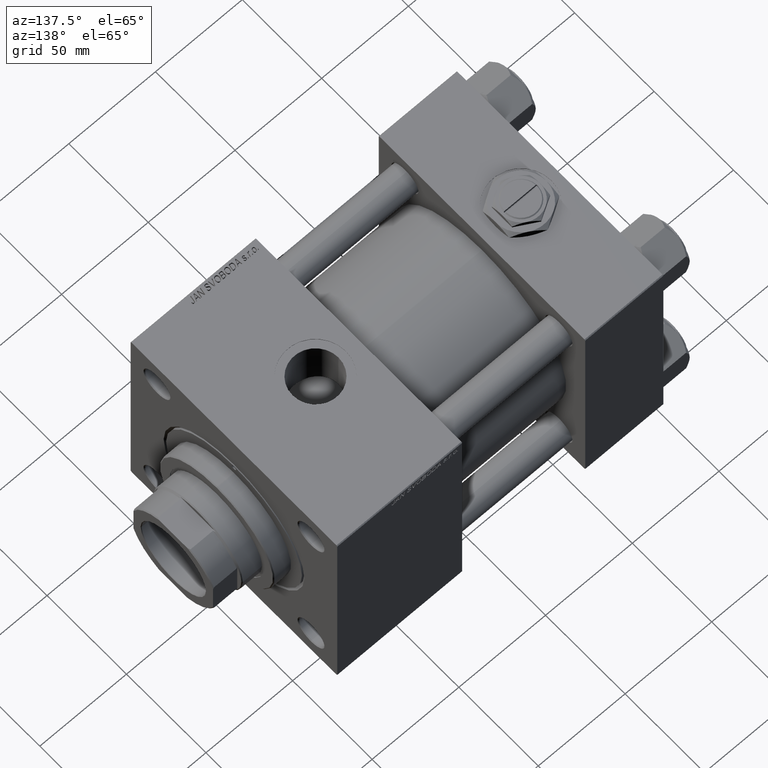
[diagram: clean part render]
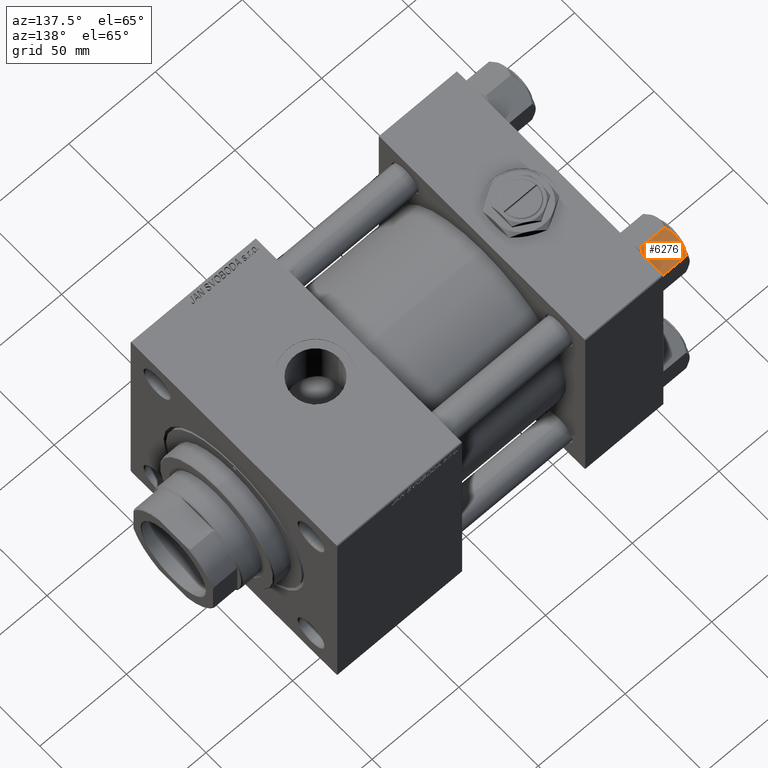
[diagram: same view with one face highlighted and labeled with its STEP entity id]
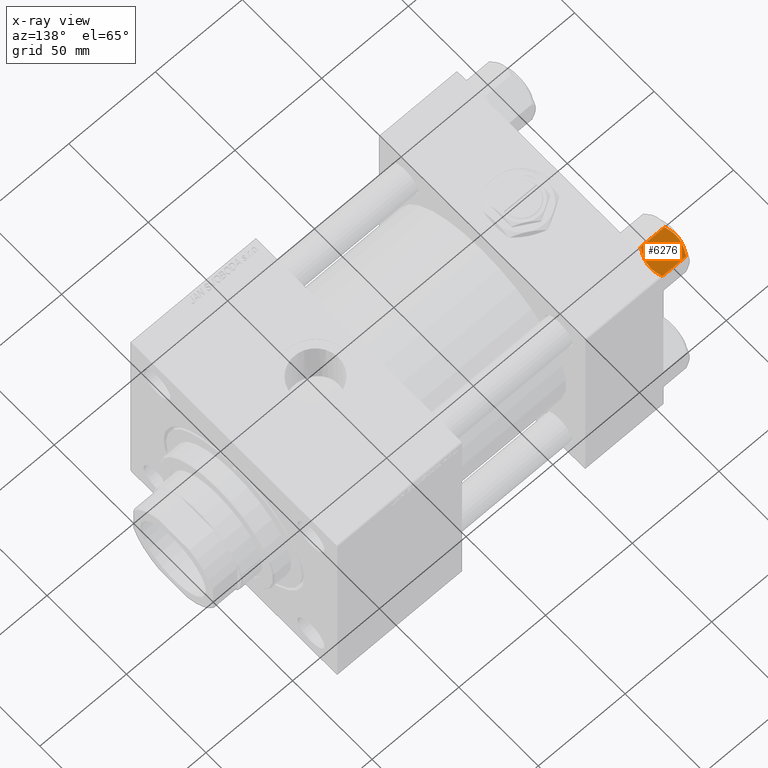
[diagram: x-ray of the same camera — body ghosted, the highlighted face saturated]
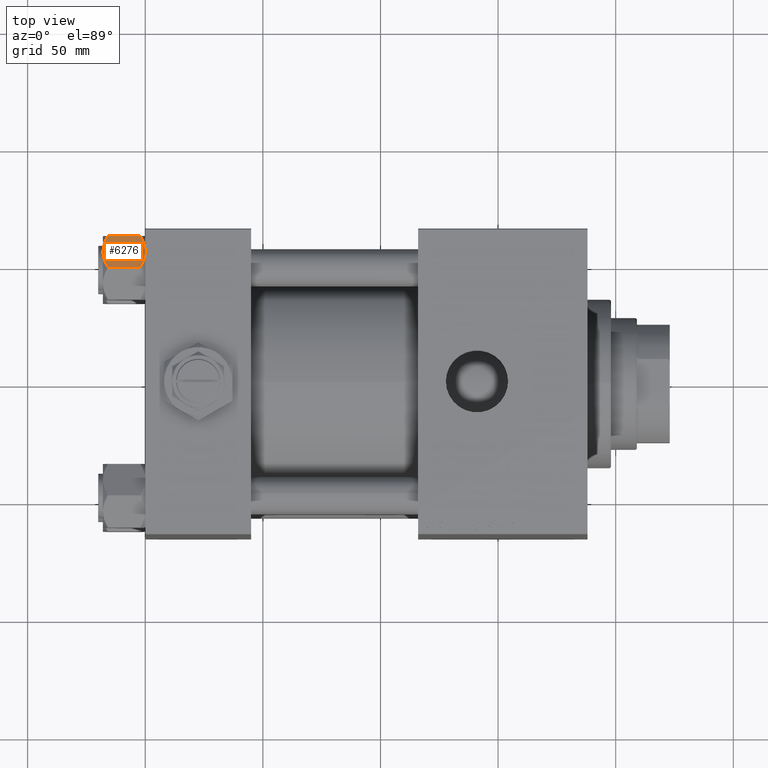
[diagram: same view with one face highlighted and labeled with its STEP entity id]
A machine part, auxiliary view. The second image highlights one B-rep face of the part: STEP entity #6276.
The next image is the same camera in x-ray: the body ghosted, the highlighted face saturated — about 0% of this face is hidden behind the body in this view.
A second angle (top view) of the same face is appended — the face is thin or edge-on in the first view.
In plain terms, the highlighted planar face has unit normal (0, -0.5, -0.866).
Its self-contained STEP definition (entity closure, byte-faithful):
#239 = LINE ( 'NONE', #8293, #31979 ) ;
#895 = LINE ( 'NONE', #4925, #14114 ) ;
#951 = CARTESIAN_POINT ( 'NONE',  ( 11.71499999999999453, 6.763658403556462417, -18.00000000000000000 ) ) ;
#1688 = DIRECTION ( 'NONE',  ( 0.4999999999999999445, -0.8660254037844387076, 0.000000000000000000 ) ) ;
#1746 = CARTESIAN_POINT ( 'NONE',  ( 11.38181071908714692, 7.340759166634869715, -17.99999999999998224 ) ) ;
#2604 = CARTESIAN_POINT ( 'NONE',  ( 7.903528262322689457, 13.36532110482641045, -16.00000000000000000 ) ) ;
#2901 = CARTESIAN_POINT ( 'NONE',  ( 11.05297796109638320, 7.910314210667883650, 2.165016213181991667E-15 ) ) ;
#3847 = ORIENTED_EDGE ( 'NONE', *, *, #32406, .F. ) ;
#4003 = DIRECTION ( 'NONE',  ( -0.000000000000000000, -0.000000000000000000, 1.000000000000000000 ) ) ;
#4280 = FACE_OUTER_BOUND ( 'NONE', #16625, .T. ) ;
#4555 = AXIS2_PLACEMENT_3D ( 'NONE', #16072, #7250, #11536 ) ;
#4925 = CARTESIAN_POINT ( 'NONE',  ( 7.810000000000001386, 13.52731680711293905, -18.00000000000000000 ) ) ;
#4962 = B_SPLINE_CURVE_WITH_KNOTS ( 'NONE', 3,
 ( #24056, #2901, #11751, #11216, #48444, #39598, #32099, #18965 ),
 .UNSPECIFIED., .F., .F.,
 ( 4, 2, 2, 4 ),
 ( 0.007890825462474437835, 0.01181022244528555538, 0.01376992093669111156, 0.01572961942809666946 ),
 .UNSPECIFIED. ) ;
#6276 = ADVANCED_FACE ( 'NONE', ( #4280 ), #28126, .F. ) ;
#7250 = DIRECTION ( 'NONE',  ( -0.8660254037844387076, -0.4999999999999999445, 0.000000000000000000 ) ) ;
#7717 = CARTESIAN_POINT ( 'NONE',  ( 13.36540581434588049, 3.905071680002324630, -0.3836066851120584764 ) ) ;
#7792 = CARTESIAN_POINT ( 'NONE',  ( 12.37702203890362362, 5.617002596445057172, -17.99999999999999645 ) ) ;
#8250 = CARTESIAN_POINT ( 'NONE',  ( 14.92760668674625002, 1.199260397376449072, -1.411989271640066601 ) ) ;
#8293 = CARTESIAN_POINT ( 'NONE',  ( 15.62000000000000455, -1.379485931020374819E-15, -18.00000000000000000 ) ) ;
#8505 = CARTESIAN_POINT ( 'NONE',  ( 11.71500000000000519, 6.763658403556469523, 0.000000000000000000 ) ) ;
#9649 = VERTEX_POINT ( 'NONE', #52317 ) ;
#9790 = CARTESIAN_POINT ( 'NONE',  ( 9.114548888011798411, 11.26777185211902221, -17.08577173959729478 ) ) ;
#11216 = CARTESIAN_POINT ( 'NONE',  ( 9.439480280627263298, 10.70497417113492489, -0.7317196846281137645 ) ) ;
#11536 = DIRECTION ( 'NONE',  ( 0.4999999999999998890, -0.8660254037844385966, 0.000000000000000000 ) ) ;
#11751 = CARTESIAN_POINT ( 'NONE',  ( 10.40215497533437450, 9.037572688741345672, -0.1971866459924547788 ) ) ;
#11814 = CARTESIAN_POINT ( 'NONE',  ( 11.71499999999999453, 6.763658403556462417, -18.00000000000000000 ) ) ;
#11823 = ORIENTED_EDGE ( 'NONE', *, *, #49854, .F. ) ;
#12907 = DIRECTION ( 'NONE',  ( -0.4999999999999999445, 0.8660254037844387076, 0.000000000000000000 ) ) ;
#14114 = VECTOR ( 'NONE', #32797, 1000.000000000000000 ) ;
#15109 = EDGE_CURVE ( 'NONE', #47248, #31805, #46732, .T. ) ;
#16072 = CARTESIAN_POINT ( 'NONE',  ( 7.810000000000001386, 13.52731680711293905, -18.00000000000000000 ) ) ;
#16625 = EDGE_LOOP ( 'NONE', ( #3847, #34131, #19509, #43443, #26442, #24143, #11823, #31755, #43169, #44505 ) ) ;
#17308 = CARTESIAN_POINT ( 'NONE',  ( 12.04818928091285812, 6.186557640478062225, 2.165016213181991667E-15 ) ) ;
#17574 = EDGE_CURVE ( 'NONE', #41531, #44648, #20668, .T. ) ;
#18965 = CARTESIAN_POINT ( 'NONE',  ( 7.903528262322677023, 13.36532110482643176, -2.000000000000000000 ) ) ;
#19351 = VERTEX_POINT ( 'NONE', #36070 ) ;
#19478 = CARTESIAN_POINT ( 'NONE',  ( 7.903528262322677023, 13.36532110482643176, -2.000000000000000000 ) ) ;
#19509 = ORIENTED_EDGE ( 'NONE', *, *, #37357, .F. ) ;
#19828 = CARTESIAN_POINT ( 'NONE',  ( 14.30591678195075467, 2.276058899034909544, -17.05261278537717828 ) ) ;
#20015 = CARTESIAN_POINT ( 'NONE',  ( 12.38621571200405924, 5.601078687526928945, -0.05089381635301384876 ) ) ;
#20668 = LINE ( 'NONE', #37025, #39886 ) ;
#21811 = EDGE_CURVE ( 'NONE', #24239, #19351, #895, .T. ) ;
#22323 = LINE ( 'NONE', #46185, #37626 ) ;
#22602 = CARTESIAN_POINT ( 'NONE',  ( 7.810000000000001386, 13.52731680711293905, -16.00000000000000000 ) ) ;
#22704 = B_SPLINE_CURVE_WITH_KNOTS ( 'NONE', 3,
 ( #23784, #8250, #52440, #7717, #24048, #20015, #17308, #8505 ),
 .UNSPECIFIED., .F., .F.,
 ( 4, 2, 2, 4 ),
 ( 4.472842641970240738E-07, 0.003945636373369317863, 0.005918230917921878283, 0.007890825462474437835 ),
 .UNSPECIFIED. ) ;
#23784 = CARTESIAN_POINT ( 'NONE',  ( 15.52647173767732980, 0.1619957022865022300, -2.000000000000000000 ) ) ;
#23859 = CARTESIAN_POINT ( 'NONE',  ( 13.99051971937273464, 2.822342635978018599, -17.26828031537187513 ) ) ;
#24048 = CARTESIAN_POINT ( 'NONE',  ( 13.04337073483128506, 4.462852799541082938, -0.2430846701012968347 ) ) ;
#24056 = CARTESIAN_POINT ( 'NONE',  ( 11.71500000000000519, 6.763658403556469523, 0.000000000000000000 ) ) ;
#24143 = ORIENTED_EDGE ( 'NONE', *, *, #17574, .F. ) ;
#24218 = B_SPLINE_CURVE_WITH_KNOTS ( 'NONE', 3,
 ( #11814, #7792, #27350, #23859, #19828, #52256, #40730, #44753 ),
 .UNSPECIFIED., .F., .F.,
 ( 4, 2, 2, 4 ),
 ( 0.007890825462474394467, 0.01181022244528549814, 0.01376992093669104911, 0.01572961942809660008 ),
 .UNSPECIFIED. ) ;
#24239 = VERTEX_POINT ( 'NONE', #33454 ) ;
#25389 = VERTEX_POINT ( 'NONE', #19478 ) ;
#25861 = CARTESIAN_POINT ( 'NONE',  ( 7.903528262322689457, 13.36532110482641045, -16.00000000000000000 ) ) ;
#26134 = CARTESIAN_POINT ( 'NONE',  ( 10.06459418565413166, 9.622245127110598872, -17.61639331488792948 ) ) ;
#26175 = CARTESIAN_POINT ( 'NONE',  ( 15.52647173767731736, 0.1619957022865213259, -16.00000000000000000 ) ) ;
#26442 = ORIENTED_EDGE ( 'NONE', *, *, #40989, .F. ) ;
#26838 = VERTEX_POINT ( 'NONE', #33371 ) ;
#27350 = CARTESIAN_POINT ( 'NONE',  ( 13.02784502466562877, 4.489744118371592485, -17.80281335400753662 ) ) ;
#28126 = PLANE ( 'NONE',  #4555 ) ;
#30373 = DIRECTION ( 'NONE',  ( -0.4999999999999999445, 0.8660254037844387076, 0.000000000000000000 ) ) ;
#31755 = ORIENTED_EDGE ( 'NONE', *, *, #15109, .F. ) ;
#31805 = VERTEX_POINT ( 'NONE', #42210 ) ;
#31979 = VECTOR ( 'NONE', #4003, 1000.000000000000000 ) ;
#32099 = CARTESIAN_POINT ( 'NONE',  ( 8.202637790192646605, 12.84724820552771085, -1.706311779141445717 ) ) ;
#32406 = EDGE_CURVE ( 'NONE', #24239, #38111, #34640, .T. ) ;
#32797 = DIRECTION ( 'NONE',  ( -0.000000000000000000, -0.000000000000000000, 1.000000000000000000 ) ) ;
#32800 = B_SPLINE_CURVE_WITH_KNOTS ( 'NONE', 3,
 ( #25861, #45969, #9790, #26134, #37404, #37662, #1746, #951 ),
 .UNSPECIFIED., .F., .F.,
 ( 4, 2, 2, 4 ),
 ( 4.472842641813524291E-07, 0.003945636373369291842, 0.005918230917921843588, 0.007890825462474394467 ),
 .UNSPECIFIED. ) ;
#33371 = CARTESIAN_POINT ( 'NONE',  ( 11.71500000000000519, 6.763658403556469523, 0.000000000000000000 ) ) ;
#33454 = CARTESIAN_POINT ( 'NONE',  ( 7.810000000000000497, 13.52731680711293905, -16.00000000000000000 ) ) ;
#33878 = CARTESIAN_POINT ( 'NONE',  ( 15.52647173767732980, 0.1619957022865022300, -2.000000000000000000 ) ) ;
#34131 = ORIENTED_EDGE ( 'NONE', *, *, #21811, .T. ) ;
#34640 = LINE ( 'NONE', #35173, #52879 ) ;
#35173 = CARTESIAN_POINT ( 'NONE',  ( 7.810000000000001386, 13.52731680711293905, -16.00000000000000000 ) ) ;
#36070 = CARTESIAN_POINT ( 'NONE',  ( 7.810000000000000497, 13.52731680711293905, -1.999999999999998224 ) ) ;
#37025 = CARTESIAN_POINT ( 'NONE',  ( 7.810000000000001386, 13.52731680711293905, -1.999999999999998224 ) ) ;
#37357 = EDGE_CURVE ( 'NONE', #25389, #19351, #22323, .T. ) ;
#37404 = CARTESIAN_POINT ( 'NONE',  ( 10.38662926516872886, 9.064464007571846338, -17.75691532989869614 ) ) ;
#37626 = VECTOR ( 'NONE', #30373, 999.9999999999998863 ) ;
#37662 = CARTESIAN_POINT ( 'NONE',  ( 11.04378428799595468, 7.926238119586002995, -17.94910618364697541 ) ) ;
#38111 = VERTEX_POINT ( 'NONE', #2604 ) ;
#39598 = CARTESIAN_POINT ( 'NONE',  ( 8.506059550806622127, 12.32170630002230283, -1.434462921875002683 ) ) ;
#39886 = VECTOR ( 'NONE', #12907, 999.9999999999998863 ) ;
#40730 = CARTESIAN_POINT ( 'NONE',  ( 15.22736220980734778, 0.6800686015852424049, -16.29368822085855584 ) ) ;
#40989 = EDGE_CURVE ( 'NONE', #44648, #26838, #22704, .T. ) ;
#41531 = VERTEX_POINT ( 'NONE', #49301 ) ;
#42210 = CARTESIAN_POINT ( 'NONE',  ( 15.62000000000000455, -1.379485931020374819E-15, -16.00000000000000000 ) ) ;
#43169 = ORIENTED_EDGE ( 'NONE', *, *, #45221, .F. ) ;
#43443 = ORIENTED_EDGE ( 'NONE', *, *, #45356, .F. ) ;
#44505 = ORIENTED_EDGE ( 'NONE', *, *, #50121, .F. ) ;
#44648 = VERTEX_POINT ( 'NONE', #33878 ) ;
#44753 = CARTESIAN_POINT ( 'NONE',  ( 15.52647173767731736, 0.1619957022865213259, -16.00000000000000000 ) ) ;
#45221 = EDGE_CURVE ( 'NONE', #9649, #47248, #24218, .T. ) ;
#45356 = EDGE_CURVE ( 'NONE', #26838, #25389, #4962, .T. ) ;
#45969 = CARTESIAN_POINT ( 'NONE',  ( 8.502393313253767460, 12.32805640973646710, -16.58801072835993295 ) ) ;
#46185 = CARTESIAN_POINT ( 'NONE',  ( 7.810000000000001386, 13.52731680711293905, -1.999999999999998224 ) ) ;
#46732 = LINE ( 'NONE', #22602, #51788 ) ;
#47248 = VERTEX_POINT ( 'NONE', #26175 ) ;
#48444 = CARTESIAN_POINT ( 'NONE',  ( 9.124083218049239719, 11.25125790807803483, -0.9473872146228128344 ) ) ;
#49301 = CARTESIAN_POINT ( 'NONE',  ( 15.62000000000000455, -1.379485931020374819E-15, -1.999999999999998224 ) ) ;
#49854 = EDGE_CURVE ( 'NONE', #31805, #41531, #239, .T. ) ;
#50121 = EDGE_CURVE ( 'NONE', #38111, #9649, #32800, .T. ) ;
#50741 = DIRECTION ( 'NONE',  ( 0.4999999999999999445, -0.8660254037844387076, 0.000000000000000000 ) ) ;
#51788 = VECTOR ( 'NONE', #50741, 999.9999999999998863 ) ;
#52256 = CARTESIAN_POINT ( 'NONE',  ( 14.92394044919337937, 1.205610507090647987, -16.56553707812500065 ) ) ;
#52317 = CARTESIAN_POINT ( 'NONE',  ( 11.71499999999999453, 6.763658403556462417, -18.00000000000000000 ) ) ;
#52440 = CARTESIAN_POINT ( 'NONE',  ( 14.31545111198821552, 2.259544954993893295, -0.9142282604026940040 ) ) ;
#52879 = VECTOR ( 'NONE', #1688, 999.9999999999998863 ) ;